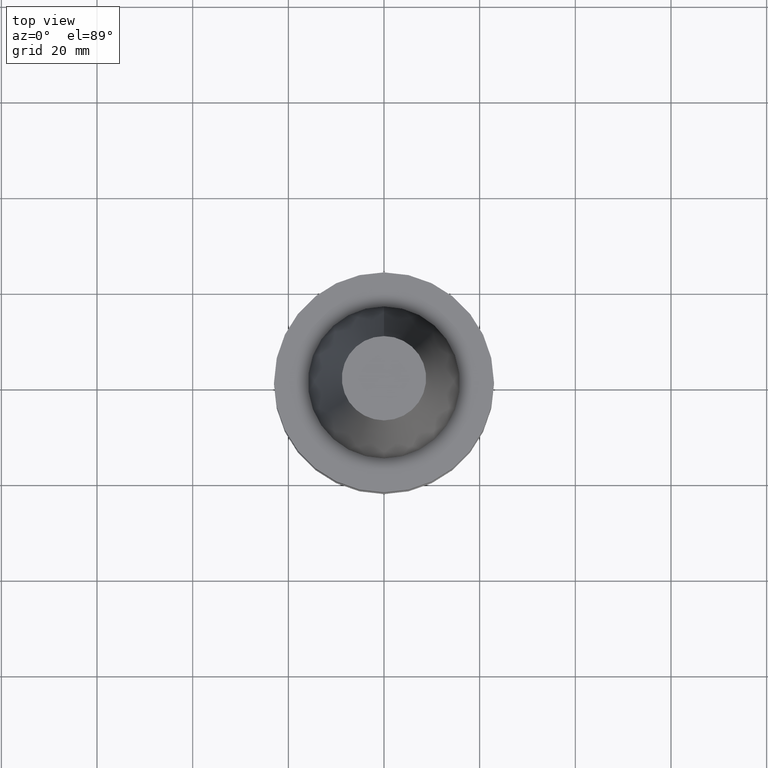
[diagram: clean part render]
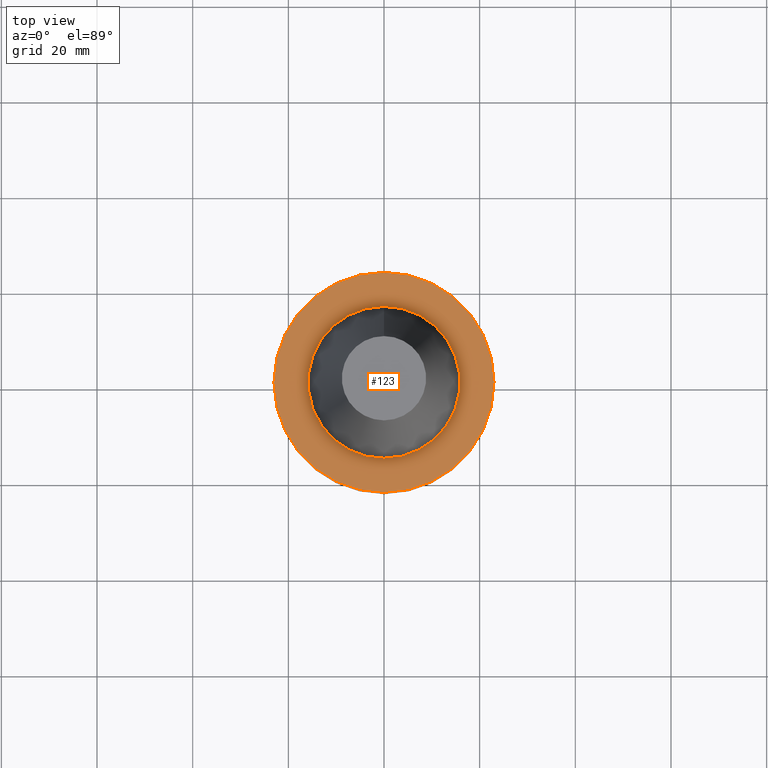
[diagram: same view with one face highlighted and labeled with its STEP entity id]
A machine part, top view. The second image highlights one B-rep face of the part: STEP entity #123.
In plain terms, the highlighted planar face has unit normal (-0, -0, 1).
Its self-contained STEP definition (entity closure, byte-faithful):
#92=EDGE_CURVE('Unnamed[1]',#226,#226,#227,.T.);
#123=ADVANCED_FACE('Unnamed[1]',(#275,#276),#277,.T.);
#180=EDGE_CURVE('Unnamed[1]',#362,#362,#363,.T.);
#226=VERTEX_POINT('',#408);
#227=CIRCLE('',#409,15.875);
#275=FACE_OUTER_BOUND('',#468,.T.);
#276=FACE_BOUND('',#469,.T.);
#277=PLANE('',#470);
#362=VERTEX_POINT('',#577);
#363=CIRCLE('',#578,23.0);
#408=CARTESIAN_POINT('',(6.12323399573675E-017,15.875,-0.999999999999998));
#409=AXIS2_PLACEMENT_3D('',#605,#606,#607);
#468=EDGE_LOOP('',(#662));
#469=EDGE_LOOP('',(#663));
#470=AXIS2_PLACEMENT_3D('',#664,#665,#666);
#577=CARTESIAN_POINT('',(6.12323399573674E-017,23.0,-0.999999999999997));
#578=AXIS2_PLACEMENT_3D('',#758,#759,#760);
#605=CARTESIAN_POINT('',(6.12323399573677E-017,1.22464679914735E-016,-1.0));
#606=DIRECTION('',(6.12323399573677E-017,1.22464679914816E-016,-1.0));
#607=DIRECTION('',(-1.23259516440783E-032,1.0,1.22464679914816E-016));
#662=ORIENTED_EDGE('',*,*,#180,.F.);
#663=ORIENTED_EDGE('',*,*,#92,.T.);
#664=CARTESIAN_POINT('',(6.12323399573674E-017,19.4375,-0.999999999999998));
#665=DIRECTION('',(-6.12323399573677E-017,-1.22464679914735E-016,1.0));
#666=DIRECTION('',(1.23259516440783E-032,-1.0,-1.22464679914735E-016));
#758=CARTESIAN_POINT('',(6.12323399573677E-017,1.22464679914735E-016,-1.0));
#759=DIRECTION('',(6.12323399573677E-017,1.22464679914716E-016,-1.0));
#760=DIRECTION('',(-1.23259516440783E-032,1.0,1.22464679914716E-016));